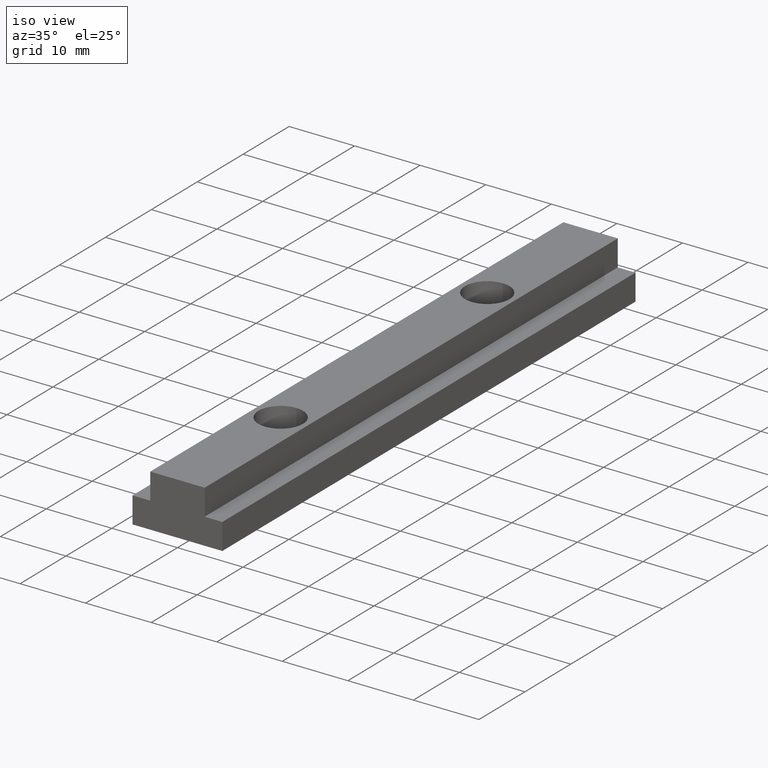
[diagram: clean part render]
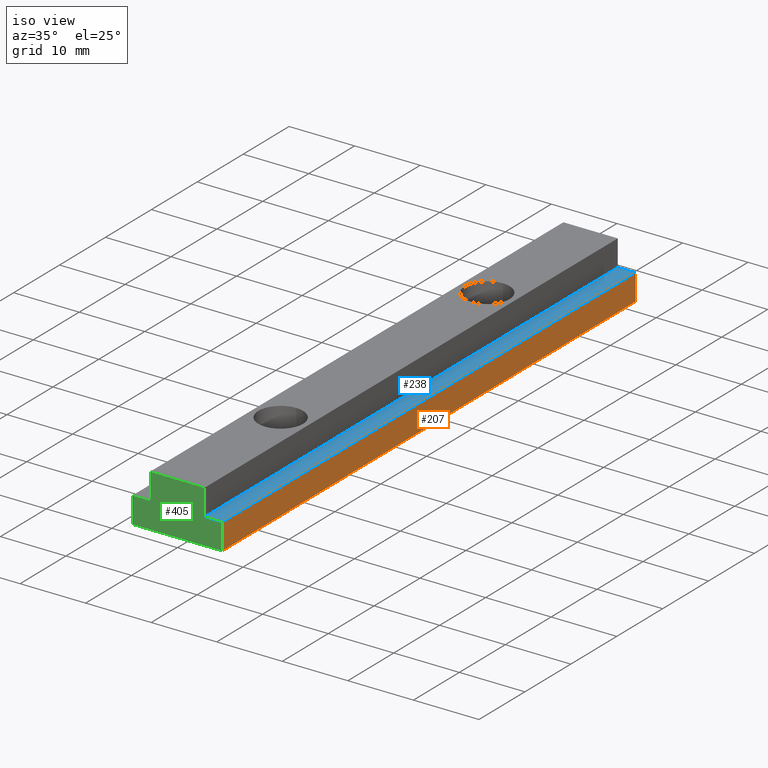
[diagram: same view with three faces highlighted in distinct colors, each labeled with its STEP entity id]
A machine part, iso view with three faces highlighted in distinct colors.
Their STEP definitions:

[orange] entity #207 — the highlighted planar face has unit normal (1, 0, 0).
#131=CARTESIAN_POINT('',(6.849999999999998,0.0,0.0));
#132=VERTEX_POINT('',#131);
#140=CARTESIAN_POINT('',(6.849999999999998,90.0,-5.329071E-015));
#141=VERTEX_POINT('',#140);
#148=CARTESIAN_POINT('',(6.849999999999998,90.0,-5.329071E-015));
#149=DIRECTION('',(0.0,-1.0,0.0));
#150=VECTOR('',#149,90.0);
#151=LINE('',#148,#150);
#152=EDGE_CURVE('',#141,#132,#151,.T.);
#177=CARTESIAN_POINT('',(6.849999999999998,-4.499999999999999,-0.199999999999999));
#178=DIRECTION('',(1.0,0.0,0.0));
#179=DIRECTION('',(0.0,1.0,0.0));
#180=AXIS2_PLACEMENT_3D('',#177,#178,#179);
#181=PLANE('',#180);
#182=CARTESIAN_POINT('',(6.849999999999998,0.0,4.0));
#183=VERTEX_POINT('',#182);
#184=CARTESIAN_POINT('',(6.849999999999998,0.0,0.0));
#185=DIRECTION('',(0.0,0.0,1.0));
#186=VECTOR('',#185,4.0);
#187=LINE('',#184,#186);
#188=EDGE_CURVE('',#132,#183,#187,.T.);
#189=ORIENTED_EDGE('',*,*,#188,.F.);
#190=ORIENTED_EDGE('',*,*,#152,.F.);
#191=CARTESIAN_POINT('',(6.849999999999998,90.0,3.999999999999995));
#192=VERTEX_POINT('',#191);
#193=CARTESIAN_POINT('',(6.849999999999998,90.0,-5.329071E-015));
#194=DIRECTION('',(0.0,0.0,1.0));
#195=VECTOR('',#194,4.0);
#196=LINE('',#193,#195);
#197=EDGE_CURVE('',#141,#192,#196,.T.);
#198=ORIENTED_EDGE('',*,*,#197,.T.);
#199=CARTESIAN_POINT('',(6.849999999999998,90.0,3.999999999999995));
#200=DIRECTION('',(0.0,-1.0,0.0));
#201=VECTOR('',#200,90.0);
#202=LINE('',#199,#201);
#203=EDGE_CURVE('',#192,#183,#202,.T.);
#204=ORIENTED_EDGE('',*,*,#203,.T.);
#205=EDGE_LOOP('',(#189,#190,#198,#204));
#206=FACE_OUTER_BOUND('',#205,.T.);
#207=ADVANCED_FACE('',(#206),#181,.T.);

[blue] entity #238 — the highlighted planar face has unit normal (0, 0, 1).
#182=CARTESIAN_POINT('',(6.849999999999998,0.0,4.0));
#183=VERTEX_POINT('',#182);
#191=CARTESIAN_POINT('',(6.849999999999998,90.0,3.999999999999995));
#192=VERTEX_POINT('',#191);
#199=CARTESIAN_POINT('',(6.849999999999998,90.0,3.999999999999995));
#200=DIRECTION('',(0.0,-1.0,0.0));
#201=VECTOR('',#200,90.0);
#202=LINE('',#199,#201);
#203=EDGE_CURVE('',#192,#183,#202,.T.);
#208=CARTESIAN_POINT('',(4.015000000000001,94.500000000000000,3.999999999999995));
#209=DIRECTION('',(0.0,0.0,1.0));
#210=DIRECTION('',(0.0,-1.0,0.0));
#211=AXIS2_PLACEMENT_3D('',#208,#209,#210);
#212=PLANE('',#211);
#213=CARTESIAN_POINT('',(4.149999999999999,0.0,4.0));
#214=VERTEX_POINT('',#213);
#215=CARTESIAN_POINT('',(6.849999999999998,0.0,4.0));
#216=DIRECTION('',(-1.0,0.0,0.0));
#217=VECTOR('',#216,2.699999999999999);
#218=LINE('',#215,#217);
#219=EDGE_CURVE('',#183,#214,#218,.T.);
#220=ORIENTED_EDGE('',*,*,#219,.F.);
#221=ORIENTED_EDGE('',*,*,#203,.F.);
#222=CARTESIAN_POINT('',(4.149999999999999,90.0,3.999999999999995));
#223=VERTEX_POINT('',#222);
#224=CARTESIAN_POINT('',(6.849999999999998,90.0,3.999999999999995));
#225=DIRECTION('',(-1.0,0.0,0.0));
#226=VECTOR('',#225,2.699999999999999);
#227=LINE('',#224,#226);
#228=EDGE_CURVE('',#192,#223,#227,.T.);
#229=ORIENTED_EDGE('',*,*,#228,.T.);
#230=CARTESIAN_POINT('',(4.149999999999999,90.0,3.999999999999995));
#231=DIRECTION('',(0.0,-1.0,0.0));
#232=VECTOR('',#231,90.0);
#233=LINE('',#230,#232);
#234=EDGE_CURVE('',#223,#214,#233,.T.);
#235=ORIENTED_EDGE('',*,*,#234,.T.);
#236=EDGE_LOOP('',(#220,#221,#229,#235));
#237=FACE_OUTER_BOUND('',#236,.T.);
#238=ADVANCED_FACE('',(#237),#212,.T.);

[green] entity #405 — the highlighted planar face has unit normal (0, -1, 0).
#91=CARTESIAN_POINT('',(-6.849999999999994,0.0,4.0));
#92=VERTEX_POINT('',#91);
#93=CARTESIAN_POINT('',(-6.849999999999994,0.0,0.0));
#94=VERTEX_POINT('',#93);
#95=CARTESIAN_POINT('',(-6.849999999999994,0.0,4.0));
#96=DIRECTION('',(0.0,0.0,-1.0));
#97=VECTOR('',#96,4.0);
#98=LINE('',#95,#97);
#99=EDGE_CURVE('',#92,#94,#98,.T.);
#131=CARTESIAN_POINT('',(6.849999999999998,0.0,0.0));
#132=VERTEX_POINT('',#131);
#133=CARTESIAN_POINT('',(-6.849999999999994,0.0,0.0));
#134=DIRECTION('',(1.0,0.0,0.0));
#135=VECTOR('',#134,13.699999999999996);
#136=LINE('',#133,#135);
#137=EDGE_CURVE('',#94,#132,#136,.T.);
#182=CARTESIAN_POINT('',(6.849999999999998,0.0,4.0));
#183=VERTEX_POINT('',#182);
#184=CARTESIAN_POINT('',(6.849999999999998,0.0,0.0));
#185=DIRECTION('',(0.0,0.0,1.0));
#186=VECTOR('',#185,4.0);
#187=LINE('',#184,#186);
#188=EDGE_CURVE('',#132,#183,#187,.T.);
#213=CARTESIAN_POINT('',(4.149999999999999,0.0,4.0));
#214=VERTEX_POINT('',#213);
#215=CARTESIAN_POINT('',(6.849999999999998,0.0,4.0));
#216=DIRECTION('',(-1.0,0.0,0.0));
#217=VECTOR('',#216,2.699999999999999);
#218=LINE('',#215,#217);
#219=EDGE_CURVE('',#183,#214,#218,.T.);
#244=CARTESIAN_POINT('',(4.149999999999999,1.776357E-015,8.0));
#245=VERTEX_POINT('',#244);
#246=CARTESIAN_POINT('',(4.149999999999999,0.0,4.0));
#247=DIRECTION('',(0.0,0.0,1.0));
#248=VECTOR('',#247,4.0);
#249=LINE('',#246,#248);
#250=EDGE_CURVE('',#214,#245,#249,.T.);
#275=CARTESIAN_POINT('',(-4.149999999999999,1.776357E-015,8.0));
#276=VERTEX_POINT('',#275);
#277=CARTESIAN_POINT('',(4.149999999999999,1.776357E-015,8.0));
#278=DIRECTION('',(-1.0,0.0,0.0));
#279=VECTOR('',#278,8.299999999999997);
#280=LINE('',#277,#279);
#281=EDGE_CURVE('',#245,#276,#280,.T.);
#326=CARTESIAN_POINT('',(-4.149999999999999,0.0,4.0));
#327=VERTEX_POINT('',#326);
#328=CARTESIAN_POINT('',(-4.149999999999999,1.776357E-015,8.0));
#329=DIRECTION('',(0.0,0.0,-1.0));
#330=VECTOR('',#329,4.0);
#331=LINE('',#328,#330);
#332=EDGE_CURVE('',#276,#327,#331,.T.);
#357=CARTESIAN_POINT('',(-4.149999999999999,0.0,4.0));
#358=DIRECTION('',(-1.0,0.0,0.0));
#359=VECTOR('',#358,2.699999999999996);
#360=LINE('',#357,#359);
#361=EDGE_CURVE('',#327,#92,#360,.T.);
#390=CARTESIAN_POINT('',(-7.534999999999997,0.0,-0.400000000000000));
#391=DIRECTION('',(0.0,-1.0,0.0));
#392=DIRECTION('',(1.0,0.0,0.0));
#393=AXIS2_PLACEMENT_3D('',#390,#391,#392);
#394=PLANE('',#393);
#395=ORIENTED_EDGE('',*,*,#99,.T.);
#396=ORIENTED_EDGE('',*,*,#137,.T.);
#397=ORIENTED_EDGE('',*,*,#188,.T.);
#398=ORIENTED_EDGE('',*,*,#219,.T.);
#399=ORIENTED_EDGE('',*,*,#250,.T.);
#400=ORIENTED_EDGE('',*,*,#281,.T.);
#401=ORIENTED_EDGE('',*,*,#332,.T.);
#402=ORIENTED_EDGE('',*,*,#361,.T.);
#403=EDGE_LOOP('',(#395,#396,#397,#398,#399,#400,#401,#402));
#404=FACE_OUTER_BOUND('',#403,.T.);
#405=ADVANCED_FACE('',(#404),#394,.T.);